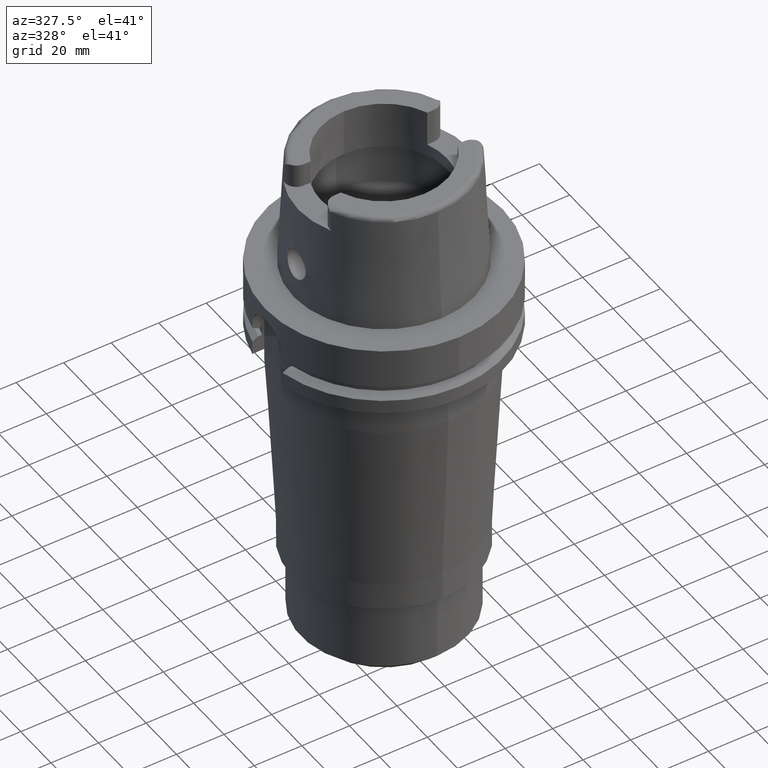
[diagram: clean part render]
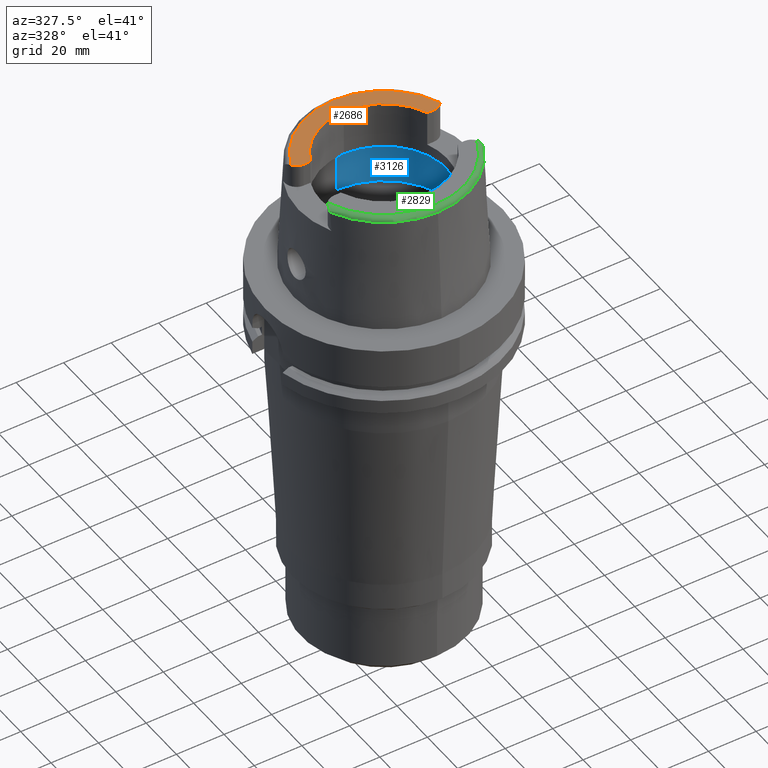
[diagram: same view with three faces highlighted in distinct colors, each labeled with its STEP entity id]
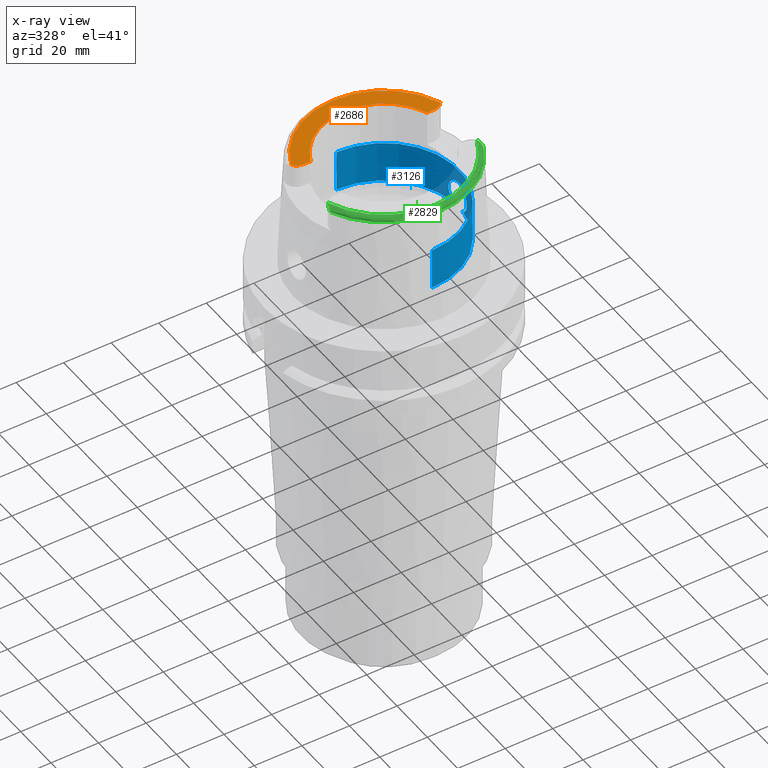
[diagram: x-ray of the same camera — body ghosted, the three highlighted faces saturated]
A machine part, auxiliary view with three faces highlighted in distinct colors.
The next image is the same camera in x-ray (body ghosted, the three faces saturated) — at least one of them is partly hidden behind the body in this view.
Their STEP definitions:

[orange] entity #2686 — the highlighted planar face has unit normal (0, 0, 1).
#17=CARTESIAN_POINT('',(-2.737E1,1.489E1,5.E1));
#18=DIRECTION('',(0.E0,0.E0,-1.E0));
#19=DIRECTION('',(0.E0,-1.E0,0.E0));
#20=AXIS2_PLACEMENT_3D('',#17,#18,#19);
#26=CARTESIAN_POINT('',(0.E0,0.E0,5.E1));
#27=DIRECTION('',(0.E0,0.E0,-1.E0));
#28=DIRECTION('',(-9.332215253018E-1,3.593015233942E-1,0.E0));
#29=AXIS2_PLACEMENT_3D('',#26,#27,#28);
#34=CARTESIAN_POINT('',(2.737E1,1.489E1,5.E1));
#35=DIRECTION('',(0.E0,0.E0,-1.E0));
#36=DIRECTION('',(8.163632566569E-1,-5.775387720150E-1,0.E0));
#37=AXIS2_PLACEMENT_3D('',#34,#35,#36);
#42=CARTESIAN_POINT('',(0.E0,0.E0,5.E1));
#43=DIRECTION('',(0.E0,0.E0,1.E0));
#44=DIRECTION('',(9.259134021805E-1,3.777358490566E-1,0.E0));
#45=AXIS2_PLACEMENT_3D('',#42,#43,#44);
#50=CARTESIAN_POINT('',(0.E0,0.E0,5.E1));
#51=DIRECTION('',(0.E0,0.E0,1.E0));
#52=DIRECTION('',(0.E0,1.E0,0.E0));
#53=AXIS2_PLACEMENT_3D('',#50,#51,#52);
#72=DIRECTION('',(1.E0,1.429464217237E-13,0.E0));
#73=VECTOR('',#72,2.833294842218E0);
#74=CARTESIAN_POINT('',(-2.737E1,1.001E1,5.E1));
#75=LINE('',#74,#73);
#2236=DIRECTION('',(1.E0,-1.423194637337E-13,0.E0));
#2237=VECTOR('',#2236,2.833294842218E0);
#2238=CARTESIAN_POINT('',(2.453670515778E1,1.001E1,5.E1));
#2239=LINE('',#2238,#2237);
#2325=CARTESIAN_POINT('',(-2.737E1,1.001E1,5.E1));
#2326=CARTESIAN_POINT('',(-3.135385269249E1,1.207161079257E1,5.E1));
#2327=VERTEX_POINT('',#2325);
#2328=VERTEX_POINT('',#2326);
#2329=CARTESIAN_POINT('',(3.135385269249E1,1.207161079257E1,5.E1));
#2330=VERTEX_POINT('',#2329);
#2331=CARTESIAN_POINT('',(2.737E1,1.001E1,5.E1));
#2332=VERTEX_POINT('',#2331);
#2333=CARTESIAN_POINT('',(2.453670515778E1,1.001E1,5.E1));
#2334=VERTEX_POINT('',#2333);
#2335=CARTESIAN_POINT('',(0.E0,2.65E1,5.E1));
#2336=VERTEX_POINT('',#2335);
#2337=CARTESIAN_POINT('',(-2.453670515778E1,1.001E1,5.E1));
#2338=VERTEX_POINT('',#2337);
#2665=CARTESIAN_POINT('',(0.E0,0.E0,5.E1));
#2666=DIRECTION('',(0.E0,0.E0,1.E0));
#2667=DIRECTION('',(0.E0,1.E0,0.E0));
#2668=AXIS2_PLACEMENT_3D('',#2665,#2666,#2667);
#2669=PLANE('',#2668);
#2671=ORIENTED_EDGE('',*,*,#2670,.T.);
#2673=ORIENTED_EDGE('',*,*,#2672,.T.);
#2675=ORIENTED_EDGE('',*,*,#2674,.T.);
#2677=ORIENTED_EDGE('',*,*,#2676,.F.);
#2679=ORIENTED_EDGE('',*,*,#2678,.T.);
#2681=ORIENTED_EDGE('',*,*,#2680,.T.);
#2683=ORIENTED_EDGE('',*,*,#2682,.F.);
#2684=EDGE_LOOP('',(#2671,#2673,#2675,#2677,#2679,#2681,#2683));
#2685=FACE_OUTER_BOUND('',#2684,.F.);
#21=CIRCLE('',#20,4.88E0);
#30=CIRCLE('',#29,3.359743838136E1);
#38=CIRCLE('',#37,4.88E0);
#46=CIRCLE('',#45,2.65E1);
#54=CIRCLE('',#53,2.65E1);
#2670=EDGE_CURVE('',#2327,#2328,#21,.T.);
#2672=EDGE_CURVE('',#2328,#2330,#30,.T.);
#2674=EDGE_CURVE('',#2330,#2332,#38,.T.);
#2676=EDGE_CURVE('',#2334,#2332,#2239,.T.);
#2678=EDGE_CURVE('',#2334,#2336,#46,.T.);
#2680=EDGE_CURVE('',#2336,#2338,#54,.T.);
#2682=EDGE_CURVE('',#2327,#2338,#75,.T.);
#2686=ADVANCED_FACE('',(#2685),#2669,.T.);

[blue] entity #3126 — the highlighted cylindrical surface (partial cylindrical patch) has radius 31.5 mm, axis along (0, 0, 1).
#536=CARTESIAN_POINT('',(0.E0,0.E0,2.711662432703E1));
#537=DIRECTION('',(0.E0,0.E0,1.E0));
#538=DIRECTION('',(0.E0,-1.E0,0.E0));
#539=AXIS2_PLACEMENT_3D('',#536,#537,#538);
#585=DIRECTION('',(0.E0,5.000414258470E-14,1.E0));
#586=VECTOR('',#585,1.762E1);
#587=CARTESIAN_POINT('',(0.E0,-3.15E1,9.496624327026E0));
#588=LINE('',#587,#586);
#686=CARTESIAN_POINT('',(0.E0,0.E0,9.496624327026E0));
#687=DIRECTION('',(0.E0,0.E0,-1.E0));
#688=DIRECTION('',(9.971171061384E-1,-7.587803796965E-2,0.E0));
#689=AXIS2_PLACEMENT_3D('',#686,#687,#688);
#710=CARTESIAN_POINT('',(0.E0,0.E0,9.496624327026E0));
#711=DIRECTION('',(0.E0,0.E0,-1.E0));
#712=DIRECTION('',(0.E0,1.E0,0.E0));
#713=AXIS2_PLACEMENT_3D('',#710,#711,#712);
#735=CARTESIAN_POINT('',(3.140918884336E1,-2.390158196044E0,9.496624327026E0));
#736=CARTESIAN_POINT('',(3.137370284659E1,-2.856481461007E0,9.699152091800E0));
#737=CARTESIAN_POINT('',(3.128859474453E1,-3.707400145337E0,1.020433824447E1));
#738=CARTESIAN_POINT('',(3.113928099984E1,-4.784492553641E0,1.127536880453E1));
#739=CARTESIAN_POINT('',(3.100881912169E1,-5.551490012933E0,1.256688766914E1));
#740=CARTESIAN_POINT('',(3.092778419711E1,-5.977993215384E0,1.399743542077E1));
#741=CARTESIAN_POINT('',(3.091518771352E1,-6.041374145573E0,1.549305405194E1));
#742=CARTESIAN_POINT('',(3.097430983652E1,-5.737293320483E0,1.695757698449E1));
#743=CARTESIAN_POINT('',(3.109203742567E1,-5.076006323082E0,1.831579404758E1));
#744=CARTESIAN_POINT('',(3.123897485970E1,-4.097830971350E0,1.946762004122E1));
#745=CARTESIAN_POINT('',(3.137831011199E1,-2.871978416142E0,2.033914448702E1));
#746=CARTESIAN_POINT('',(3.147664429814E1,-1.469940970178E0,2.087917017838E1));
#747=CARTESIAN_POINT('',(3.15E1,-5.000265199719E-1,2.1E1));
#748=CARTESIAN_POINT('',(3.15E1,0.E0,2.1E1));
#753=CARTESIAN_POINT('',(3.15E1,0.E0,2.1E1));
#754=CARTESIAN_POINT('',(3.15E1,5.029119196014E-1,2.1E1));
#755=CARTESIAN_POINT('',(3.147637481607E1,1.477572854997E0,2.087779123833E1));
#756=CARTESIAN_POINT('',(3.137725459066E1,2.883876280408E0,2.033316137463E1));
#757=CARTESIAN_POINT('',(3.123731083332E1,4.110405734309E0,1.945636337077E1));
#758=CARTESIAN_POINT('',(3.109031368610E1,5.086357039755E0,1.830005087916E1));
#759=CARTESIAN_POINT('',(3.097316298175E1,5.743339975145E0,1.693960888536E1));
#760=CARTESIAN_POINT('',(3.091492818840E1,6.042674180621E0,1.547524432269E1));
#761=CARTESIAN_POINT('',(3.092834596188E1,5.975139974959E0,1.398185818559E1));
#762=CARTESIAN_POINT('',(3.100979198357E1,5.546121169286E0,1.255536329902E1));
#763=CARTESIAN_POINT('',(3.114017301620E1,4.778633834364E0,1.126840905462E1));
#764=CARTESIAN_POINT('',(3.128902322664E1,3.703485308838E0,1.020177646228E1));
#765=CARTESIAN_POINT('',(3.137382032916E1,2.854937616640E0,9.698481588369E0));
#766=CARTESIAN_POINT('',(3.140918884336E1,2.390158196044E0,9.496624327026E0));
#771=DIRECTION('',(0.E0,-5.000414258470E-14,1.E0));
#772=VECTOR('',#771,1.762E1);
#773=CARTESIAN_POINT('',(0.E0,3.15E1,9.496624327026E0));
#774=LINE('',#773,#772);
#2411=CARTESIAN_POINT('',(0.E0,3.15E1,2.711662432703E1));
#2412=VERTEX_POINT('',#2411);
#2413=CARTESIAN_POINT('',(0.E0,-3.15E1,2.711662432703E1));
#2414=VERTEX_POINT('',#2413);
#2417=CARTESIAN_POINT('',(0.E0,-3.15E1,9.496624327026E0));
#2418=VERTEX_POINT('',#2417);
#2419=CARTESIAN_POINT('',(0.E0,3.15E1,9.496624327026E0));
#2420=VERTEX_POINT('',#2419);
#2425=VERTEX_POINT('',#735);
#2426=VERTEX_POINT('',#748);
#2428=VERTEX_POINT('',#766);
#3111=CARTESIAN_POINT('',(0.E0,0.E0,-1.7827E2));
#3112=DIRECTION('',(0.E0,0.E0,1.E0));
#3113=DIRECTION('',(0.E0,1.E0,0.E0));
#3114=AXIS2_PLACEMENT_3D('',#3111,#3112,#3113);
#3115=CYLINDRICAL_SURFACE('',#3114,3.15E1);
#3116=ORIENTED_EDGE('',*,*,#3100,.T.);
#3118=ORIENTED_EDGE('',*,*,#3117,.T.);
#3119=ORIENTED_EDGE('',*,*,#3088,.F.);
#3120=ORIENTED_EDGE('',*,*,#3018,.T.);
#3121=ORIENTED_EDGE('',*,*,#2988,.F.);
#3122=ORIENTED_EDGE('',*,*,#3015,.F.);
#3123=ORIENTED_EDGE('',*,*,#3082,.F.);
#3124=EDGE_LOOP('',(#3116,#3118,#3119,#3120,#3121,#3122,#3123));
#3125=FACE_OUTER_BOUND('',#3124,.F.);
#540=CIRCLE('',#539,3.15E1);
#690=CIRCLE('',#689,3.15E1);
#714=CIRCLE('',#713,3.15E1);
#749=B_SPLINE_CURVE_WITH_KNOTS('',3,(#735,#736,#737,#738,#739,#740,#741,#742,
#743,#744,#745,#746,#747,#748),.UNSPECIFIED.,.F.,.F.,(4,1,1,1,1,1,1,1,1,1,1,4),(
0.E0,9.090909090909E-2,1.818181818182E-1,2.727272727273E-1,3.636363636364E-1,
4.545454545455E-1,5.454545454545E-1,6.363636363636E-1,7.272727272727E-1,
8.181818181818E-1,9.090909090909E-1,1.E0),.UNSPECIFIED.);
#767=B_SPLINE_CURVE_WITH_KNOTS('',3,(#753,#754,#755,#756,#757,#758,#759,#760,
#761,#762,#763,#764,#765,#766),.UNSPECIFIED.,.F.,.F.,(4,1,1,1,1,1,1,1,1,1,1,4),(
0.E0,9.090909090909E-2,1.818181818182E-1,2.727272727273E-1,3.636363636364E-1,
4.545454545455E-1,5.454545454545E-1,6.363636363636E-1,7.272727272727E-1,
8.181818181818E-1,9.090909090909E-1,1.E0),.UNSPECIFIED.);
#2988=EDGE_CURVE('',#2414,#2412,#540,.T.);
#3015=EDGE_CURVE('',#2418,#2414,#588,.T.);
#3018=EDGE_CURVE('',#2420,#2412,#774,.T.);
#3082=EDGE_CURVE('',#2425,#2418,#690,.T.);
#3088=EDGE_CURVE('',#2420,#2428,#714,.T.);
#3100=EDGE_CURVE('',#2425,#2426,#749,.T.);
#3117=EDGE_CURVE('',#2426,#2428,#767,.T.);
#3126=ADVANCED_FACE('',(#3125),#3115,.F.);

[green] entity #2829 — the highlighted toroidal blend (fillet) surface has major radius 33.5974 mm and minor (blend) radius 2 mm.
#199=CARTESIAN_POINT('',(0.E0,0.E0,5.E1));
#200=DIRECTION('',(0.E0,0.E0,-1.E0));
#201=DIRECTION('',(9.332215253018E-1,-3.593015233942E-1,0.E0));
#202=AXIS2_PLACEMENT_3D('',#199,#200,#201);
#221=CARTESIAN_POINT('',(-3.224999491821E1,-1.506448480606E1,4.809973264154E1));
#222=CARTESIAN_POINT('',(-3.224999491821E1,-1.505849788420E1,4.815040650019E1));
#223=CARTESIAN_POINT('',(-3.225000237150E1,-1.503764046134E1,4.825063283540E1));
#224=CARTESIAN_POINT('',(-3.224999932243E1,-1.497889634507E1,4.840086128066E1));
#225=CARTESIAN_POINT('',(-3.225E1,-1.492253149078E1,4.849794517038E1));
#226=CARTESIAN_POINT('',(-3.225E1,-1.489E1,4.854599893822E1));
#231=CARTESIAN_POINT('',(-3.225E1,-1.489E1,4.854599893822E1));
#232=CARTESIAN_POINT('',(-3.225E1,-1.484230475069E1,4.861645179427E1));
#233=CARTESIAN_POINT('',(-3.224866664234E1,-1.472989002304E1,4.875720455429E1));
#234=CARTESIAN_POINT('',(-3.223715422292E1,-1.450939285395E1,4.897059560001E1));
#235=CARTESIAN_POINT('',(-3.221000890175E1,-1.424437184278E1,4.918031761961E1));
#236=CARTESIAN_POINT('',(-3.215913412684E1,-1.393248920874E1,4.938726986438E1));
#237=CARTESIAN_POINT('',(-3.207553529693E1,-1.357697862502E1,4.958505780796E1));
#238=CARTESIAN_POINT('',(-3.194723273099E1,-1.317959539686E1,4.976449974385E1));
#239=CARTESIAN_POINT('',(-3.177577679655E1,-1.277581936523E1,4.990199404827E1));
#240=CARTESIAN_POINT('',(-3.156730475285E1,-1.238894827256E1,4.998465708563E1));
#241=CARTESIAN_POINT('',(-3.142527774818E1,-1.217257161788E1,5.E1));
#242=CARTESIAN_POINT('',(-3.135385269249E1,-1.207161079257E1,5.E1));
#247=CARTESIAN_POINT('',(3.135385269249E1,-1.207161079257E1,5.E1));
#248=CARTESIAN_POINT('',(3.142531668133E1,-1.217262665071E1,5.E1));
#249=CARTESIAN_POINT('',(3.156742823613E1,-1.238916330671E1,4.998462082619E1));
#250=CARTESIAN_POINT('',(3.177588606013E1,-1.277599494229E1,4.990197196299E1));
#251=CARTESIAN_POINT('',(3.194765609054E1,-1.318072847964E1,4.976405168562E1));
#252=CARTESIAN_POINT('',(3.207551263090E1,-1.357702509927E1,4.958499278018E1));
#253=CARTESIAN_POINT('',(3.215906474191E1,-1.393210745156E1,4.938750793604E1));
#254=CARTESIAN_POINT('',(3.221006691853E1,-1.424465168096E1,4.918015817748E1));
#255=CARTESIAN_POINT('',(3.223727222127E1,-1.451073311691E1,4.896949380199E1));
#256=CARTESIAN_POINT('',(3.224870603662E1,-1.473139857535E1,4.875554115786E1));
#257=CARTESIAN_POINT('',(3.225E1,-1.484283940489E1,4.861566203186E1));
#258=CARTESIAN_POINT('',(3.225E1,-1.489E1,4.854599893822E1));
#263=CARTESIAN_POINT('',(3.225E1,-1.489E1,4.854599893822E1));
#264=CARTESIAN_POINT('',(3.225E1,-1.492390722876E1,4.849591300426E1));
#265=CARTESIAN_POINT('',(3.225000073602E1,-1.498153835746E1,4.839573945069E1));
#266=CARTESIAN_POINT('',(3.224999742392E1,-1.503932811940E1,4.824463930483E1));
#267=CARTESIAN_POINT('',(3.225000552017E1,-1.505878057807E1,4.814759051863E1));
#268=CARTESIAN_POINT('',(3.225000552017E1,-1.506439831662E1,4.810004146142E1));
#273=CARTESIAN_POINT('',(0.E0,0.E0,4.809987853799E1));
#274=DIRECTION('',(0.E0,0.E0,-1.E0));
#275=DIRECTION('',(9.060280460805E-1,-4.232176505246E-1,0.E0));
#276=AXIS2_PLACEMENT_3D('',#273,#274,#275);
#281=CARTESIAN_POINT('',(0.E0,0.E0,4.809987853799E1));
#282=DIRECTION('',(0.E0,0.E0,-1.E0));
#283=DIRECTION('',(0.E0,-1.E0,0.E0));
#284=AXIS2_PLACEMENT_3D('',#281,#282,#283);
#2339=CARTESIAN_POINT('',(-3.135385269249E1,-1.207161079257E1,5.E1));
#2341=VERTEX_POINT('',#2339);
#2351=CARTESIAN_POINT('',(3.135385269249E1,-1.207161079257E1,5.E1));
#2352=VERTEX_POINT('',#2351);
#2375=VERTEX_POINT('',#231);
#2382=VERTEX_POINT('',#221);
#2383=VERTEX_POINT('',#258);
#2384=VERTEX_POINT('',#268);
#2385=CARTESIAN_POINT('',(1.065814103640E-14,-3.559494289391E1,
4.809987853799E1));
#2386=VERTEX_POINT('',#2385);
#2810=CARTESIAN_POINT('',(0.E0,0.E0,4.8E1));
#2811=DIRECTION('',(0.E0,0.E0,1.E0));
#2812=DIRECTION('',(-4.184165975220E-4,-9.999999124638E-1,0.E0));
#2813=AXIS2_PLACEMENT_3D('',#2810,#2811,#2812);
#2814=TOROIDAL_SURFACE('',#2813,3.359743838136E1,2.E0);
#2816=ORIENTED_EDGE('',*,*,#2815,.T.);
#2817=ORIENTED_EDGE('',*,*,#2801,.T.);
#2818=ORIENTED_EDGE('',*,*,#2790,.F.);
#2820=ORIENTED_EDGE('',*,*,#2819,.T.);
#2822=ORIENTED_EDGE('',*,*,#2821,.T.);
#2824=ORIENTED_EDGE('',*,*,#2823,.T.);
#2826=ORIENTED_EDGE('',*,*,#2825,.T.);
#2827=EDGE_LOOP('',(#2816,#2817,#2818,#2820,#2822,#2824,#2826));
#2828=FACE_OUTER_BOUND('',#2827,.F.);
#203=CIRCLE('',#202,3.359743838136E1);
#227=B_SPLINE_CURVE_WITH_KNOTS('',3,(#221,#222,#223,#224,#225,#226),
.UNSPECIFIED.,.F.,.F.,(4,1,1,4),(0.E0,3.333333333333E-1,6.666666666667E-1,1.E0),
.UNSPECIFIED.);
#243=B_SPLINE_CURVE_WITH_KNOTS('',3,(#231,#232,#233,#234,#235,#236,#237,#238,
#239,#240,#241,#242),.UNSPECIFIED.,.F.,.F.,(4,1,1,1,1,1,1,1,1,4),(0.E0,
1.111111111111E-1,2.222222222222E-1,3.333333333333E-1,4.444444444444E-1,
5.555555555556E-1,6.666666666667E-1,7.777777777778E-1,8.888888888889E-1,1.E0),
.UNSPECIFIED.);
#259=B_SPLINE_CURVE_WITH_KNOTS('',3,(#247,#248,#249,#250,#251,#252,#253,#254,
#255,#256,#257,#258),.UNSPECIFIED.,.F.,.F.,(4,1,1,1,1,1,1,1,1,4),(0.E0,
1.111111111111E-1,2.222222222222E-1,3.333333333333E-1,4.444444444444E-1,
5.555555555556E-1,6.666666666667E-1,7.777777777778E-1,8.888888888889E-1,1.E0),
.UNSPECIFIED.);
#269=B_SPLINE_CURVE_WITH_KNOTS('',3,(#263,#264,#265,#266,#267,#268),
.UNSPECIFIED.,.F.,.F.,(4,1,1,4),(0.E0,3.333333333333E-1,6.666666666667E-1,1.E0),
.UNSPECIFIED.);
#277=CIRCLE('',#276,3.559494289391E1);
#285=CIRCLE('',#284,3.559494289391E1);
#2790=EDGE_CURVE('',#2352,#2341,#203,.T.);
#2801=EDGE_CURVE('',#2375,#2341,#243,.T.);
#2815=EDGE_CURVE('',#2382,#2375,#227,.T.);
#2819=EDGE_CURVE('',#2352,#2383,#259,.T.);
#2821=EDGE_CURVE('',#2383,#2384,#269,.T.);
#2823=EDGE_CURVE('',#2384,#2386,#277,.T.);
#2825=EDGE_CURVE('',#2386,#2382,#285,.T.);
#2829=ADVANCED_FACE('',(#2828),#2814,.T.);